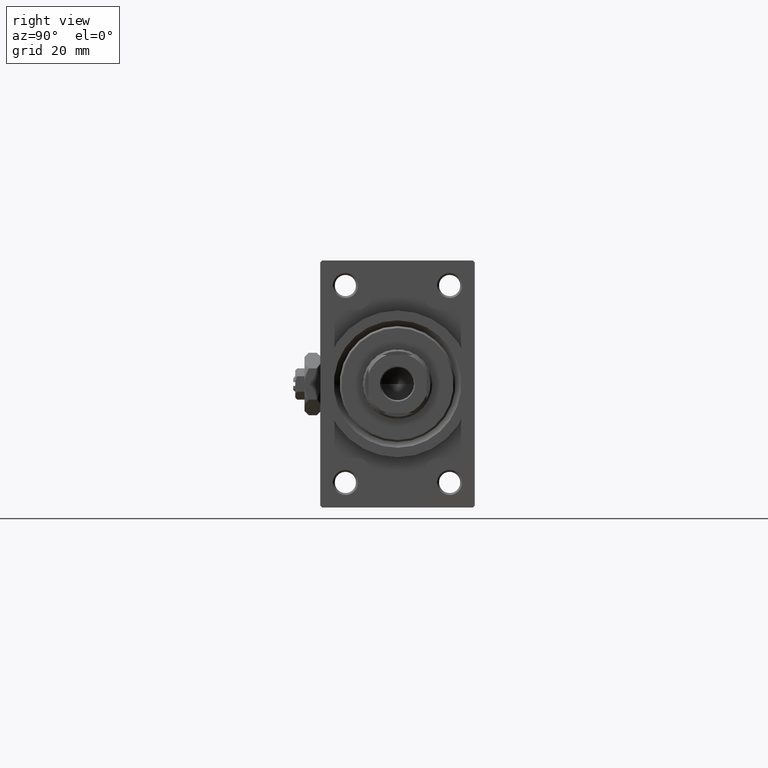
[diagram: clean part render]
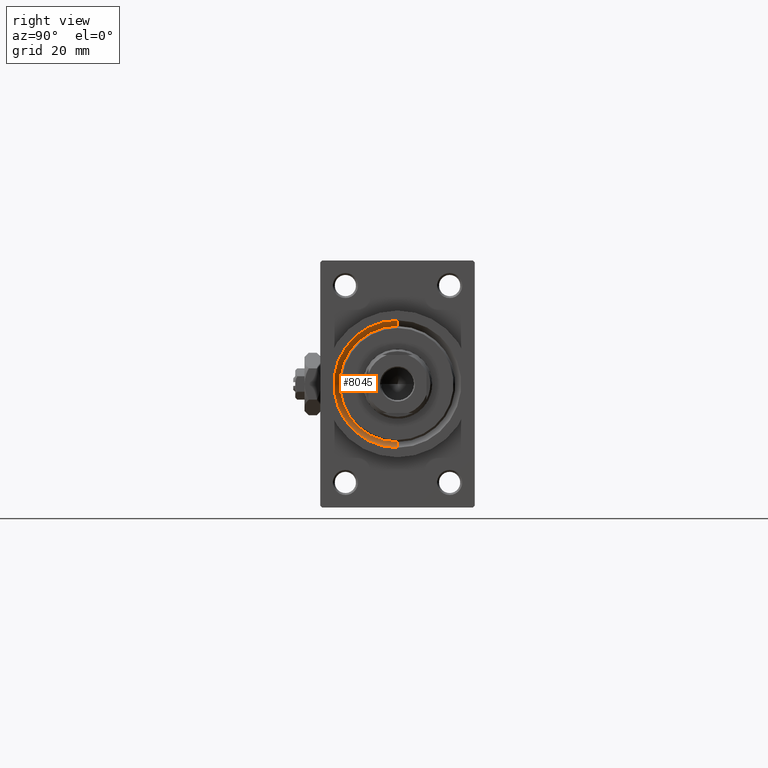
[diagram: same view with one face highlighted and labeled with its STEP entity id]
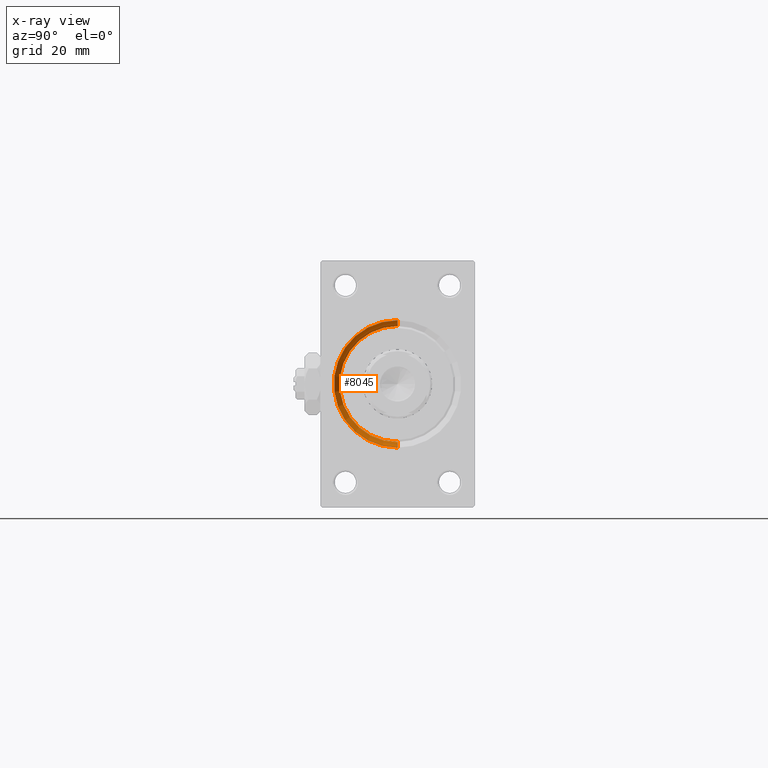
[diagram: x-ray of the same camera — body ghosted, the highlighted face saturated]
A machine part, right view. The second image highlights one B-rep face of the part: STEP entity #8045.
The next image is the same camera in x-ray: the body ghosted, the highlighted face saturated — about 0% of this face is hidden behind the body in this view.
In plain terms, the highlighted conical surface has half-angle 45 deg.
Its self-contained STEP definition (entity closure, byte-faithful):
#1908 = AXIS2_PLACEMENT_3D ( 'NONE', #32263, #32738, #17149 ) ;
#2852 = VECTOR ( 'NONE', #7914, 1000.000000000000114 ) ;
#3079 = DIRECTION ( 'NONE',  ( 0.000000000000000000, 0.000000000000000000, -1.000000000000000000 ) ) ;
#3931 = DIRECTION ( 'NONE',  ( 1.000000000000000000, 0.000000000000000000, 0.000000000000000000 ) ) ;
#7169 = FACE_OUTER_BOUND ( 'NONE', #34271, .T. ) ;
#7914 = DIRECTION ( 'NONE',  ( 0.7071067811865540120, 8.659560562354852739E-17, 0.7071067811865410224 ) ) ;
#8045 = ADVANCED_FACE ( 'NONE', ( #7169 ), #36052, .F. ) ;
#8315 = AXIS2_PLACEMENT_3D ( 'NONE', #18659, #26095, #3079 ) ;
#8984 = CARTESIAN_POINT ( 'NONE',  ( 149.0000000000000284, 2.020667218593135861E-15, 16.50000000000002842 ) ) ;
#9177 = EDGE_CURVE ( 'NONE', #43035, #46218, #12613, .T. ) ;
#11623 = DIRECTION ( 'NONE',  ( 0.000000000000000000, 0.000000000000000000, -1.000000000000000000 ) ) ;
#11631 = CARTESIAN_POINT ( 'NONE',  ( 147.4999999999999716, 1.836970198721029589E-15, 15.00000000000000000 ) ) ;
#12613 = LINE ( 'NONE', #11631, #2852 ) ;
#13299 = CARTESIAN_POINT ( 'NONE',  ( 147.4999999999999716, 0.000000000000000000, -15.00000000000000000 ) ) ;
#13489 = DIRECTION ( 'NONE',  ( 0.7071067811865540120, 0.000000000000000000, -0.7071067811865410224 ) ) ;
#14486 = ORIENTED_EDGE ( 'NONE', *, *, #21283, .F. ) ;
#15706 = ORIENTED_EDGE ( 'NONE', *, *, #48502, .F. ) ;
#16656 = ORIENTED_EDGE ( 'NONE', *, *, #30638, .F. ) ;
#16692 = CARTESIAN_POINT ( 'NONE',  ( 147.4999999999999716, 0.000000000000000000, -15.00000000000000000 ) ) ;
#16936 = LINE ( 'NONE', #16692, #19062 ) ;
#17122 = CARTESIAN_POINT ( 'NONE',  ( 149.0000000000000284, 0.000000000000000000, -16.50000000000002842 ) ) ;
#17149 = DIRECTION ( 'NONE',  ( 0.000000000000000000, 0.000000000000000000, -1.000000000000000000 ) ) ;
#18659 = CARTESIAN_POINT ( 'NONE',  ( 147.4999999999999716, 0.000000000000000000, 0.000000000000000000 ) ) ;
#19062 = VECTOR ( 'NONE', #13489, 1000.000000000000114 ) ;
#21283 = EDGE_CURVE ( 'NONE', #48802, #46218, #23242, .T. ) ;
#23242 = CIRCLE ( 'NONE', #1908, 16.50000000000002842 ) ;
#26095 = DIRECTION ( 'NONE',  ( 1.000000000000000000, 0.000000000000000000, 0.000000000000000000 ) ) ;
#29652 = CIRCLE ( 'NONE', #8315, 15.00000000000000000 ) ;
#30638 = EDGE_CURVE ( 'NONE', #43035, #35964, #29652, .T. ) ;
#32263 = CARTESIAN_POINT ( 'NONE',  ( 149.0000000000000284, 0.000000000000000000, 0.000000000000000000 ) ) ;
#32738 = DIRECTION ( 'NONE',  ( -1.000000000000000000, -0.000000000000000000, -0.000000000000000000 ) ) ;
#34271 = EDGE_LOOP ( 'NONE', ( #16656, #34865, #14486, #15706 ) ) ;
#34865 = ORIENTED_EDGE ( 'NONE', *, *, #9177, .T. ) ;
#35964 = VERTEX_POINT ( 'NONE', #13299 ) ;
#36052 = CONICAL_SURFACE ( 'NONE', #36820, 15.00000000000000000, 0.7853981633974391752 ) ;
#36820 = AXIS2_PLACEMENT_3D ( 'NONE', #37848, #3931, #11623 ) ;
#37848 = CARTESIAN_POINT ( 'NONE',  ( 147.4999999999999716, 0.000000000000000000, 0.000000000000000000 ) ) ;
#43035 = VERTEX_POINT ( 'NONE', #47071 ) ;
#46218 = VERTEX_POINT ( 'NONE', #8984 ) ;
#47071 = CARTESIAN_POINT ( 'NONE',  ( 147.4999999999999716, 1.836970198721029589E-15, 15.00000000000000000 ) ) ;
#48502 = EDGE_CURVE ( 'NONE', #35964, #48802, #16936, .T. ) ;
#48802 = VERTEX_POINT ( 'NONE', #17122 ) ;